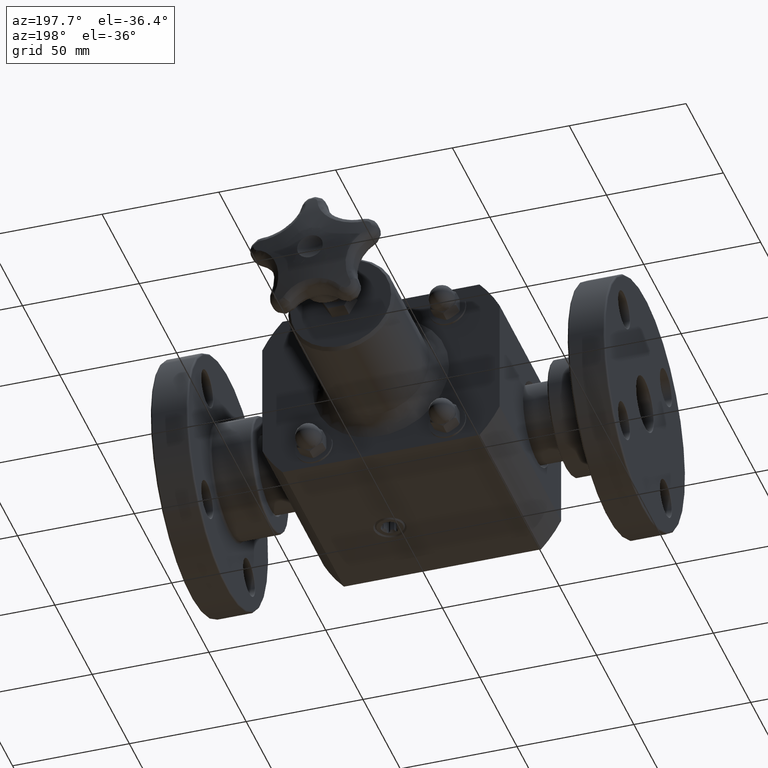
[diagram: clean part render]
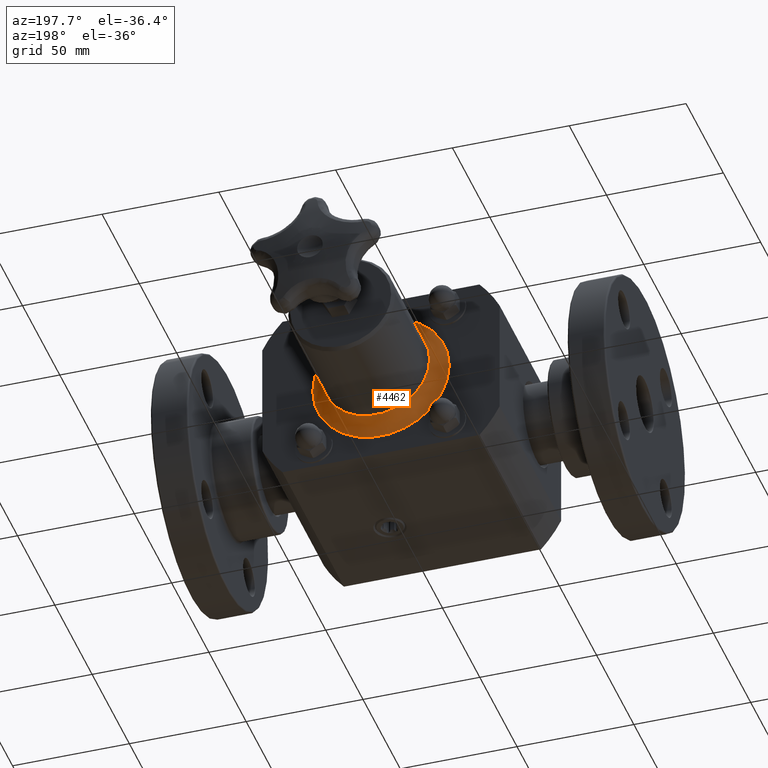
[diagram: same view with one face highlighted and labeled with its STEP entity id]
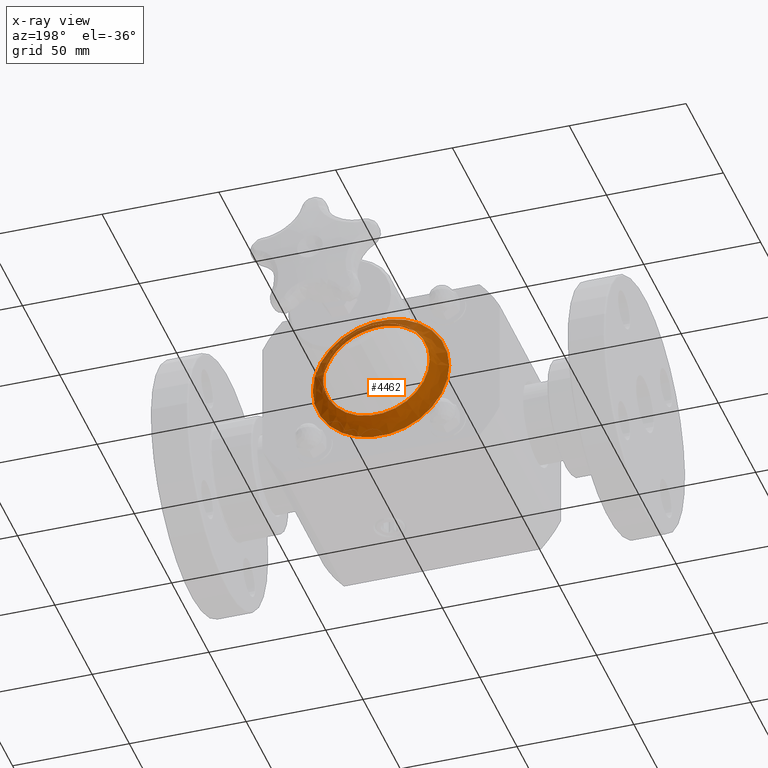
[diagram: x-ray of the same camera — body ghosted, the highlighted face saturated]
A machine part, auxiliary view. The second image highlights one B-rep face of the part: STEP entity #4462.
The next image is the same camera in x-ray: the body ghosted, the highlighted face saturated — about 15% of this face is hidden behind the body in this view.
In plain terms, the highlighted face is a freeform B-spline surface patch.
Its self-contained STEP definition (entity closure, byte-faithful):
#4380=CARTESIAN_POINT('',(0.900000000000001,3.500000000000000,7.037240E-016));
#4381=VERTEX_POINT('',#4380);
#4382=CARTESIAN_POINT('',(6.993531E-016,3.500000000000000,5.463696E-016));
#4383=DIRECTION('',(0.0,-1.0,0.0));
#4384=DIRECTION('',(1.0,0.0,0.0));
#4385=AXIS2_PLACEMENT_3D('',#4382,#4383,#4384);
#4386=CIRCLE('',#4385,0.900000000000000);
#4387=EDGE_CURVE('',#4381,#4381,#4386,.T.);
#4395=CARTESIAN_POINT('',(2.831290E-016,3.500000000000000,1.400000000000001));
#4396=CARTESIAN_POINT('',(2.831290E-016,3.250000000000000,1.400000000000001));
#4397=CARTESIAN_POINT('',(3.574547E-016,3.250000000000000,1.150000000000001));
#4398=CARTESIAN_POINT('',(4.317804E-016,3.249999999999999,0.900000000000001));
#4399=CARTESIAN_POINT('',(4.317804E-016,3.500000000000000,0.900000000000001));
#4400=CARTESIAN_POINT('',(-1.400000000000000,3.500000000000000,1.400000000000000));
#4401=CARTESIAN_POINT('',(-1.400000000000000,3.250000000000000,1.400000000000000));
#4402=CARTESIAN_POINT('',(-1.150000000000000,3.250000000000000,1.150000000000000));
#4403=CARTESIAN_POINT('',(-0.900000000000000,3.250000000000000,0.900000000000000));
#4404=CARTESIAN_POINT('',(-0.900000000000000,3.500000000000000,0.900000000000000));
#4405=CARTESIAN_POINT('',(-1.400000000000000,3.500000000000000,1.301455E-016));
#4406=CARTESIAN_POINT('',(-1.400000000000000,3.250000000000000,1.301455E-016));
#4407=CARTESIAN_POINT('',(-1.150000000000000,3.250000000000000,2.044712E-016));
#4408=CARTESIAN_POINT('',(-0.900000000000000,3.249999999999999,2.787969E-016));
#4409=CARTESIAN_POINT('',(-0.900000000000000,3.500000000000000,2.787969E-016));
#4410=CARTESIAN_POINT('',(-1.399999999999999,3.500000000000000,-1.400000000000000));
#4411=CARTESIAN_POINT('',(-1.399999999999999,3.250000000000000,-1.400000000000000));
#4412=CARTESIAN_POINT('',(-1.149999999999999,3.250000000000000,-1.150000000000000));
#4413=CARTESIAN_POINT('',(-0.899999999999999,3.250000000000000,-0.900000000000000));
#4414=CARTESIAN_POINT('',(-0.899999999999999,3.500000000000000,-0.900000000000000));
#4415=CARTESIAN_POINT('',(1.115577E-015,3.500000000000000,-1.400000000000000));
#4416=CARTESIAN_POINT('',(1.115577E-015,3.250000000000000,-1.400000000000000));
#4417=CARTESIAN_POINT('',(1.041251E-015,3.250000000000000,-1.150000000000000));
#4418=CARTESIAN_POINT('',(9.669257E-016,3.249999999999999,-0.900000000000000));
#4419=CARTESIAN_POINT('',(9.669257E-016,3.500000000000000,-0.900000000000000));
#4420=CARTESIAN_POINT('',(1.400000000000001,3.500000000000000,-1.399999999999999));
#4421=CARTESIAN_POINT('',(1.400000000000001,3.250000000000000,-1.399999999999999));
#4422=CARTESIAN_POINT('',(1.150000000000001,3.250000000000000,-1.149999999999999));
#4423=CARTESIAN_POINT('',(0.900000000000001,3.250000000000000,-0.899999999999999));
#4424=CARTESIAN_POINT('',(0.900000000000001,3.500000000000000,-0.899999999999999));
#4425=CARTESIAN_POINT('',(1.400000000000001,3.500000000000000,9.625937E-016));
#4426=CARTESIAN_POINT('',(1.400000000000001,3.250000000000000,9.625937E-016));
#4427=CARTESIAN_POINT('',(1.150000000000001,3.250000000000000,8.882680E-016));
#4428=CARTESIAN_POINT('',(0.900000000000001,3.249999999999999,8.139423E-016));
#4429=CARTESIAN_POINT('',(0.900000000000001,3.500000000000000,8.139423E-016));
#4430=CARTESIAN_POINT('',(1.400000000000000,3.500000000000000,1.400000000000001));
#4431=CARTESIAN_POINT('',(1.400000000000000,3.250000000000000,1.400000000000001));
#4432=CARTESIAN_POINT('',(1.150000000000000,3.250000000000000,1.150000000000001));
#4433=CARTESIAN_POINT('',(0.900000000000000,3.250000000000000,0.900000000000001));
#4434=CARTESIAN_POINT('',(0.900000000000000,3.500000000000000,0.900000000000001));
#4435=CARTESIAN_POINT('',(2.831290E-016,3.500000000000000,1.400000000000001));
#4436=CARTESIAN_POINT('',(2.831290E-016,3.250000000000000,1.400000000000001));
#4437=CARTESIAN_POINT('',(3.574547E-016,3.250000000000000,1.150000000000001));
#4438=CARTESIAN_POINT('',(4.317804E-016,3.249999999999999,0.900000000000001));
#4439=CARTESIAN_POINT('',(4.317804E-016,3.500000000000000,0.900000000000001));
#4447=(BOUNDED_SURFACE()B_SPLINE_SURFACE(2,2,((#4395,#4400,#4405,#4410,#4415,#4420,#4425,#4430,#4435),(#4396,#4401,#4406,#4411,#4416,#4421,#4426,#4431,#4436),(#4397,#4402,#4407,#4412,#4417,#4422,#4427,#4432,#4437),(#4398,#4403,#4408,#4413,#4418,#4423,#4428,#4433,#4438),(#4399,#4404,#4409,#4414,#4419,#4424,#4429,#4434,#4439)),.UNSPECIFIED.,.F.,.T.,.U.)B_SPLINE_SURFACE_WITH_KNOTS((3,2,3),(3,2,2,2,3),(-2.659212E-044,1.570796326794897,3.141592653589793),(0.0,1.570796326794897,3.141592653589793,4.712388980384690,6.283185307179586),.UNSPECIFIED.)GEOMETRIC_REPRESENTATION_ITEM()RATIONAL_B_SPLINE_SURFACE(((1.0,0.707106781186548,1.0,0.707106781186548,1.0,0.707106781186548,1.0,0.707106781186548,1.0),(0.707106781186550,0.500000000000002,0.707106781186550,0.500000000000002,0.707106781186550,0.500000000000002,0.707106781186550,0.500000000000002,0.707106781186550),(1.0,0.707106781186548,1.0,0.707106781186548,1.0,0.707106781186548,1.0,0.707106781186548,1.0),(0.707106781186548,0.500000000000001,0.707106781186548,0.500000000000001,0.707106781186548,0.500000000000001,0.707106781186548,0.500000000000001,0.707106781186548),(1.0,0.707106781186548,1.0,0.707106781186548,1.0,0.707106781186548,1.0,0.707106781186548,1.0)))REPRESENTATION_ITEM('')SURFACE());
#4448=CARTESIAN_POINT('',(1.150000000000001,3.250000000000000,7.474336E-016));
#4449=VERTEX_POINT('',#4448);
#4450=CARTESIAN_POINT('',(6.993531E-016,3.250000000000000,5.463696E-016));
#4451=DIRECTION('',(0.0,-1.0,0.0));
#4452=DIRECTION('',(1.0,0.0,0.0));
#4453=AXIS2_PLACEMENT_3D('',#4450,#4451,#4452);
#4454=CIRCLE('',#4453,1.150000000000000);
#4455=EDGE_CURVE('',#4449,#4449,#4454,.T.);
#4456=ORIENTED_EDGE('',*,*,#4455,.F.);
#4457=EDGE_LOOP('',(#4456));
#4458=FACE_OUTER_BOUND('',#4457,.T.);
#4459=ORIENTED_EDGE('',*,*,#4387,.T.);
#4460=EDGE_LOOP('',(#4459));
#4461=FACE_BOUND('',#4460,.T.);
#4462=ADVANCED_FACE('',(#4458,#4461),#4447,.T.);